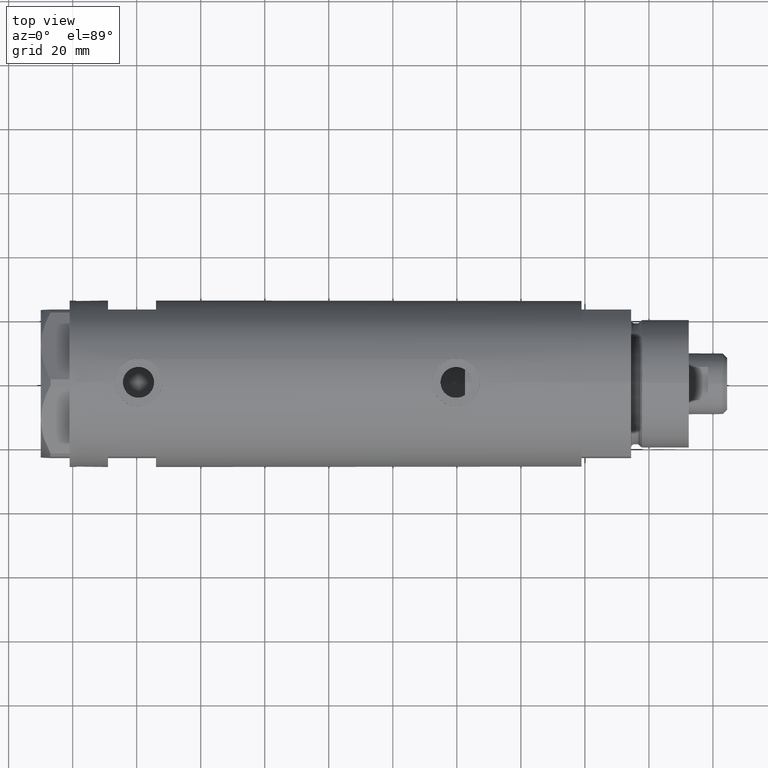
[diagram: clean part render]
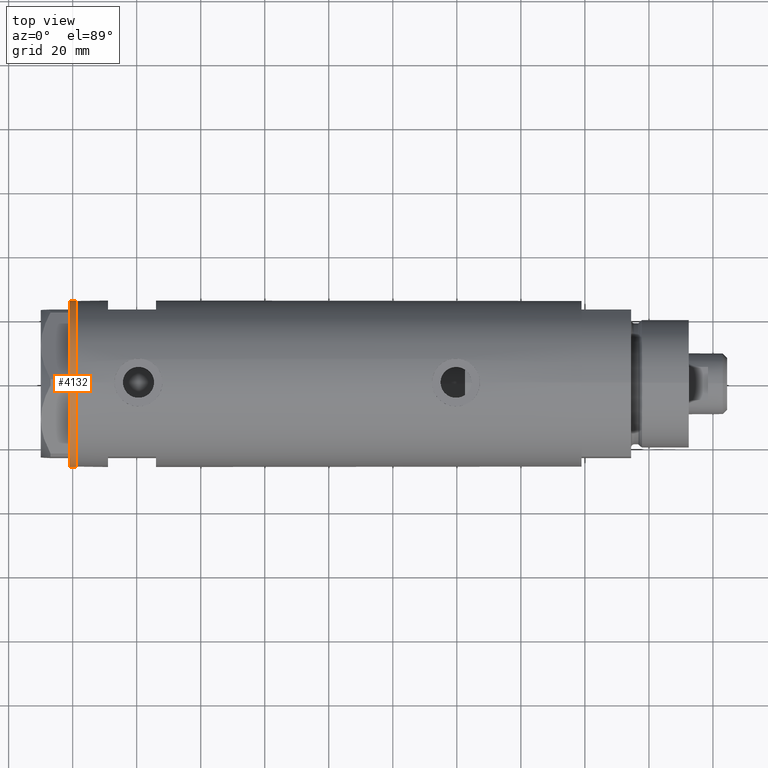
[diagram: same view with one face highlighted and labeled with its STEP entity id]
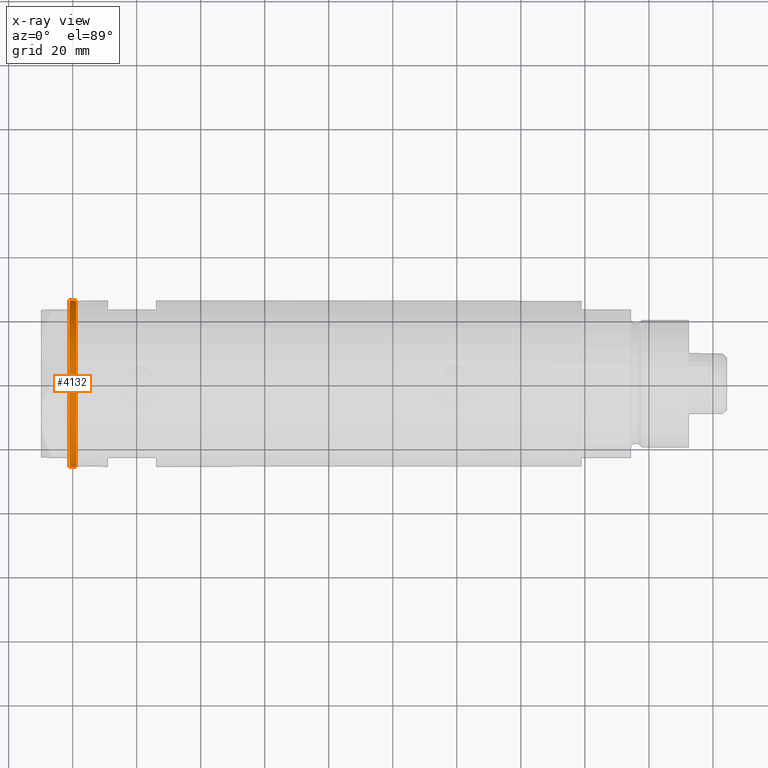
[diagram: x-ray of the same camera — body ghosted, the highlighted face saturated]
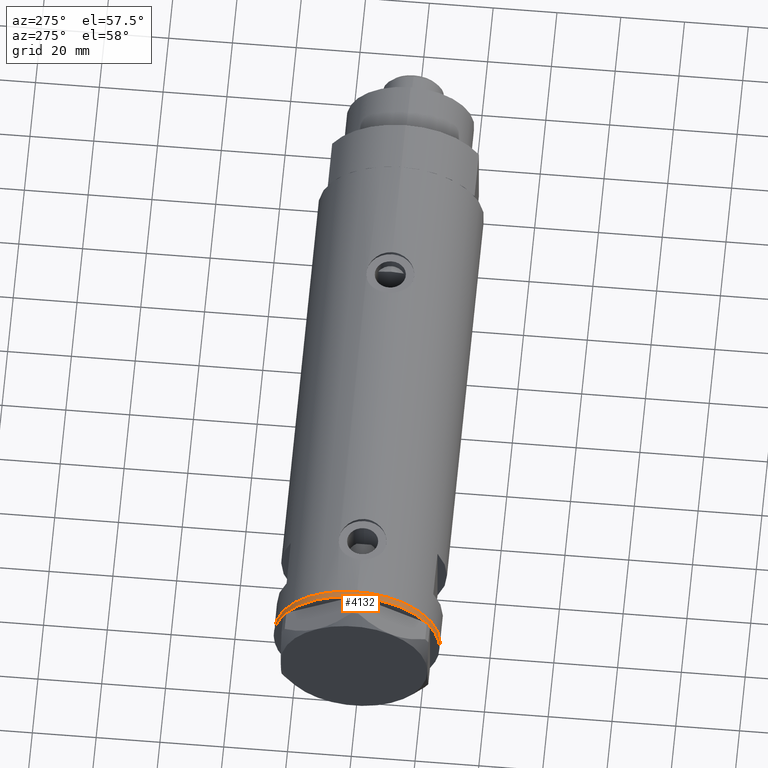
[diagram: same view with one face highlighted and labeled with its STEP entity id]
A machine part, top view. The second image highlights one B-rep face of the part: STEP entity #4132.
The next image is the same camera in x-ray: the body ghosted, the highlighted face saturated — about 0% of this face is hidden behind the body in this view.
A second angle (auxiliary view) of the same face is appended — the face is thin or edge-on in the first view.
In plain terms, the highlighted cylindrical surface (partial cylindrical patch) has radius 26 mm, axis along (-1, -0, 0).
Its self-contained STEP definition (entity closure, byte-faithful):
#14 = VERTEX_POINT ( 'NONE', #3010 ) ;
#79 = CARTESIAN_POINT ( 'NONE',  ( 23.00000000000007461, -12.12435565298200224, 0.000000000000000000 ) ) ;
#85 = ORIENTED_EDGE ( 'NONE', *, *, #1269, .T. ) ;
#119 = DIRECTION ( 'NONE',  ( -1.000000000000000000, 0.000000000000000000, 0.000000000000000000 ) ) ;
#139 = CARTESIAN_POINT ( 'NONE',  ( -0.3132930502238524539, -25.99811238272274139, 0.000000000000000000 ) ) ;
#172 = CARTESIAN_POINT ( 'NONE',  ( 0.000000000000000000, 0.000000000000000000, 0.000000000000000000 ) ) ;
#203 = AXIS2_PLACEMENT_3D ( 'NONE', #879, #1234, #3128 ) ;
#258 = CARTESIAN_POINT ( 'NONE',  ( -26.00000000000000355, 3.184081677783118585E-15, -2.000000000000000000 ) ) ;
#309 = CARTESIAN_POINT ( 'NONE',  ( 0.000000000000000000, 0.000000000000000000, 0.000000000000000000 ) ) ;
#327 = CARTESIAN_POINT ( 'NONE',  ( 0.000000000000000000, 0.000000000000000000, 0.000000000000000000 ) ) ;
#398 = CARTESIAN_POINT ( 'NONE',  ( 22.67167229899274616, -12.72773645103814211, 0.000000000000000000 ) ) ;
#481 = B_SPLINE_CURVE_WITH_KNOTS ( 'NONE', 3,
 ( #3033, #1599, #828, #3094 ),
 .UNSPECIFIED., .F., .F.,
 ( 4, 4 ),
 ( 0.000000000000000000, 1.000000000000000000 ),
 .UNSPECIFIED. ) ;
#503 = CARTESIAN_POINT ( 'NONE',  ( 0.000000000000000000, 0.000000000000000000, -2.000000000000000000 ) ) ;
#508 = CARTESIAN_POINT ( 'NONE',  ( 0.000000000000000000, 0.000000000000000000, 0.000000000000000000 ) ) ;
#526 = AXIS2_PLACEMENT_3D ( 'NONE', #4746, #1678, #1321 ) ;
#614 = CARTESIAN_POINT ( 'NONE',  ( 0.000000000000000000, 0.000000000000000000, 0.000000000000000000 ) ) ;
#620 = EDGE_CURVE ( 'NONE', #1087, #2829, #2512, .T. ) ;
#626 = ORIENTED_EDGE ( 'NONE', *, *, #3273, .T. ) ;
#644 = CARTESIAN_POINT ( 'NONE',  ( 0.000000000000000000, 0.000000000000000000, -2.000000000000000000 ) ) ;
#666 = DIRECTION ( 'NONE',  ( -0.000000000000000000, -0.000000000000000000, 1.000000000000000000 ) ) ;
#682 = VERTEX_POINT ( 'NONE', #1975 ) ;
#739 = EDGE_CURVE ( 'NONE', #1311, #3356, #2461, .T. ) ;
#754 = DIRECTION ( 'NONE',  ( 0.000000000000000000, 0.000000000000000000, -1.000000000000000000 ) ) ;
#828 = CARTESIAN_POINT ( 'NONE',  ( -22.56942594318098116, -12.90986591935703665, 0.000000000000000000 ) ) ;
#842 = AXIS2_PLACEMENT_3D ( 'NONE', #2151, #2519, #2599 ) ;
#879 = CARTESIAN_POINT ( 'NONE',  ( 0.000000000000000000, 0.000000000000000000, 0.000000000000000000 ) ) ;
#909 = CARTESIAN_POINT ( 'NONE',  ( 22.67167229899274616, -12.72773645103814211, 0.000000000000000000 ) ) ;
#930 = AXIS2_PLACEMENT_3D ( 'NONE', #172, #2755, #119 ) ;
#980 = DIRECTION ( 'NONE',  ( -1.000000000000000000, 0.000000000000000000, 0.000000000000000000 ) ) ;
#1010 = DIRECTION ( 'NONE',  ( 0.000000000000000000, 0.000000000000000000, -1.000000000000000000 ) ) ;
#1077 = CIRCLE ( 'NONE', #203, 26.00000000000000355 ) ;
#1079 = AXIS2_PLACEMENT_3D ( 'NONE', #327, #1382, #4763 ) ;
#1086 = AXIS2_PLACEMENT_3D ( 'NONE', #644, #666, #4748 ) ;
#1087 = VERTEX_POINT ( 'NONE', #398 ) ;
#1104 = VERTEX_POINT ( 'NONE', #3417 ) ;
#1122 = ORIENTED_EDGE ( 'NONE', *, *, #3298, .F. ) ;
#1190 = CARTESIAN_POINT ( 'NONE',  ( 0.000000000000000000, 0.000000000000000000, 0.000000000000000000 ) ) ;
#1234 = DIRECTION ( 'NONE',  ( 0.000000000000000000, 0.000000000000000000, -1.000000000000000000 ) ) ;
#1269 = EDGE_CURVE ( 'NONE', #4321, #14, #3138, .T. ) ;
#1272 = CARTESIAN_POINT ( 'NONE',  ( -0.1044411259762646482, -26.00062917530481243, 0.000000000000000000 ) ) ;
#1293 = CYLINDRICAL_SURFACE ( 'NONE', #1086, 26.00000000000000355 ) ;
#1296 = VERTEX_POINT ( 'NONE', #4566 ) ;
#1300 = CARTESIAN_POINT ( 'NONE',  ( -0.3132930502238524539, -25.99811238272274139, 0.000000000000000000 ) ) ;
#1311 = VERTEX_POINT ( 'NONE', #139 ) ;
#1315 = VERTEX_POINT ( 'NONE', #3885 ) ;
#1321 = DIRECTION ( 'NONE',  ( -1.000000000000000000, 0.000000000000000000, 0.000000000000000000 ) ) ;
#1332 = EDGE_CURVE ( 'NONE', #2382, #1311, #2496, .T. ) ;
#1382 = DIRECTION ( 'NONE',  ( 0.000000000000000000, 0.000000000000000000, -1.000000000000000000 ) ) ;
#1415 = ORIENTED_EDGE ( 'NONE', *, *, #2855, .T. ) ;
#1460 = CIRCLE ( 'NONE', #1611, 26.00000000000000355 ) ;
#1497 = VERTEX_POINT ( 'NONE', #2342 ) ;
#1503 = LINE ( 'NONE', #3319, #3874 ) ;
#1578 = VERTEX_POINT ( 'NONE', #79 ) ;
#1599 = CARTESIAN_POINT ( 'NONE',  ( -22.46498481720448481, -13.09076325594801915, 0.000000000000000000 ) ) ;
#1611 = AXIS2_PLACEMENT_3D ( 'NONE', #503, #2292, #2644 ) ;
#1616 = CIRCLE ( 'NONE', #3480, 26.00000000000000355 ) ;
#1678 = DIRECTION ( 'NONE',  ( 0.000000000000000000, 0.000000000000000000, -1.000000000000000000 ) ) ;
#1685 = AXIS2_PLACEMENT_3D ( 'NONE', #508, #1905, #2767 ) ;
#1772 = CIRCLE ( 'NONE', #526, 26.00000000000000355 ) ;
#1778 = DIRECTION ( 'NONE',  ( 0.000000000000000000, 0.000000000000000000, -1.000000000000000000 ) ) ;
#1828 = DIRECTION ( 'NONE',  ( -1.000000000000000000, 0.000000000000000000, 0.000000000000000000 ) ) ;
#1894 = ORIENTED_EDGE ( 'NONE', *, *, #3919, .T. ) ;
#1905 = DIRECTION ( 'NONE',  ( 0.000000000000000000, 0.000000000000000000, -1.000000000000000000 ) ) ;
#1975 = CARTESIAN_POINT ( 'NONE',  ( -22.67167229899264669, -12.72773645103832507, 0.000000000000000000 ) ) ;
#1994 = VERTEX_POINT ( 'NONE', #4759 ) ;
#2041 = CARTESIAN_POINT ( 'NONE',  ( 0.1044411259767168837, -26.00062917530480888, 0.000000000000000000 ) ) ;
#2042 = CARTESIAN_POINT ( 'NONE',  ( 26.00000000000000355, 0.000000000000000000, -2.000000000000000000 ) ) ;
#2090 = AXIS2_PLACEMENT_3D ( 'NONE', #614, #1010, #980 ) ;
#2151 = CARTESIAN_POINT ( 'NONE',  ( 0.000000000000000000, 0.000000000000000000, 0.000000000000000000 ) ) ;
#2292 = DIRECTION ( 'NONE',  ( 0.000000000000000000, 0.000000000000000000, -1.000000000000000000 ) ) ;
#2342 = CARTESIAN_POINT ( 'NONE',  ( -22.35837924876856064, -13.27037593168466501, 0.000000000000000000 ) ) ;
#2382 = VERTEX_POINT ( 'NONE', #4215 ) ;
#2397 = CARTESIAN_POINT ( 'NONE',  ( 22.46498481720470863, -13.09076325594764079, 0.000000000000000000 ) ) ;
#2405 = DIRECTION ( 'NONE',  ( -0.000000000000000000, -0.000000000000000000, 1.000000000000000000 ) ) ;
#2406 = DIRECTION ( 'NONE',  ( -1.000000000000000000, 0.000000000000000000, 0.000000000000000000 ) ) ;
#2461 = CIRCLE ( 'NONE', #3327, 26.00000000000000355 ) ;
#2496 = B_SPLINE_CURVE_WITH_KNOTS ( 'NONE', 3,
 ( #4649, #2041, #1272, #1300 ),
 .UNSPECIFIED., .F., .F.,
 ( 4, 4 ),
 ( 0.000000000000000000, 1.000000000000000000 ),
 .UNSPECIFIED. ) ;
#2502 = EDGE_LOOP ( 'NONE', ( #4046, #1122, #85, #1894, #2901, #4846, #3287, #2824, #3859, #3210, #4130, #3057, #1415, #626, #2615, #2729 ) ) ;
#2512 = B_SPLINE_CURVE_WITH_KNOTS ( 'NONE', 3,
 ( #909, #3773, #2397, #3879 ),
 .UNSPECIFIED., .F., .F.,
 ( 4, 4 ),
 ( 0.000000000000000000, 1.000000000000000000 ),
 .UNSPECIFIED. ) ;
#2519 = DIRECTION ( 'NONE',  ( 0.000000000000000000, 0.000000000000000000, -1.000000000000000000 ) ) ;
#2557 = CIRCLE ( 'NONE', #1685, 26.00000000000000355 ) ;
#2599 = DIRECTION ( 'NONE',  ( -1.000000000000000000, 0.000000000000000000, 0.000000000000000000 ) ) ;
#2615 = ORIENTED_EDGE ( 'NONE', *, *, #2771, .T. ) ;
#2644 = DIRECTION ( 'NONE',  ( -1.000000000000000000, 0.000000000000000000, 0.000000000000000000 ) ) ;
#2729 = ORIENTED_EDGE ( 'NONE', *, *, #3593, .T. ) ;
#2755 = DIRECTION ( 'NONE',  ( 0.000000000000000000, 0.000000000000000000, -1.000000000000000000 ) ) ;
#2767 = DIRECTION ( 'NONE',  ( -1.000000000000000000, 0.000000000000000000, 0.000000000000000000 ) ) ;
#2771 = EDGE_CURVE ( 'NONE', #682, #1315, #2557, .T. ) ;
#2802 = CARTESIAN_POINT ( 'NONE',  ( 26.00000000000000355, 0.000000000000000000, -2.000000000000000000 ) ) ;
#2824 = ORIENTED_EDGE ( 'NONE', *, *, #2921, .T. ) ;
#2829 = VERTEX_POINT ( 'NONE', #3074 ) ;
#2855 = EDGE_CURVE ( 'NONE', #1994, #1497, #4422, .T. ) ;
#2876 = CIRCLE ( 'NONE', #842, 26.00000000000000355 ) ;
#2901 = ORIENTED_EDGE ( 'NONE', *, *, #4347, .T. ) ;
#2921 = EDGE_CURVE ( 'NONE', #1296, #3064, #1772, .T. ) ;
#2938 = DIRECTION ( 'NONE',  ( -0.000000000000000000, -0.000000000000000000, 1.000000000000000000 ) ) ;
#3010 = CARTESIAN_POINT ( 'NONE',  ( 26.00000000000000355, 0.000000000000000000, 0.000000000000000000 ) ) ;
#3033 = CARTESIAN_POINT ( 'NONE',  ( -22.35837924876856064, -13.27037593168466501, 0.000000000000000000 ) ) ;
#3057 = ORIENTED_EDGE ( 'NONE', *, *, #4018, .T. ) ;
#3064 = VERTEX_POINT ( 'NONE', #4420 ) ;
#3074 = CARTESIAN_POINT ( 'NONE',  ( 22.35837924876884131, -13.27037593168418717, 0.000000000000000000 ) ) ;
#3086 = EDGE_CURVE ( 'NONE', #3314, #1104, #1503, .T. ) ;
#3094 = CARTESIAN_POINT ( 'NONE',  ( -22.67167229899264669, -12.72773645103832507, 0.000000000000000000 ) ) ;
#3128 = DIRECTION ( 'NONE',  ( -1.000000000000000000, 0.000000000000000000, 0.000000000000000000 ) ) ;
#3138 = LINE ( 'NONE', #2802, #3380 ) ;
#3148 = CARTESIAN_POINT ( 'NONE',  ( -0.9999999999997406519, -25.98076211353317433, 0.000000000000000000 ) ) ;
#3187 = CIRCLE ( 'NONE', #1079, 26.00000000000000355 ) ;
#3210 = ORIENTED_EDGE ( 'NONE', *, *, #1332, .T. ) ;
#3273 = EDGE_CURVE ( 'NONE', #1497, #682, #481, .T. ) ;
#3280 = EDGE_CURVE ( 'NONE', #2829, #1296, #1077, .T. ) ;
#3287 = ORIENTED_EDGE ( 'NONE', *, *, #3280, .T. ) ;
#3298 = EDGE_CURVE ( 'NONE', #4321, #3314, #1460, .T. ) ;
#3314 = VERTEX_POINT ( 'NONE', #258 ) ;
#3319 = CARTESIAN_POINT ( 'NONE',  ( -26.00000000000000355, 3.184081677783118585E-15, -2.000000000000000000 ) ) ;
#3327 = AXIS2_PLACEMENT_3D ( 'NONE', #309, #1778, #1828 ) ;
#3356 = VERTEX_POINT ( 'NONE', #3148 ) ;
#3380 = VECTOR ( 'NONE', #2405, 1000.000000000000000 ) ;
#3417 = CARTESIAN_POINT ( 'NONE',  ( -26.00000000000000355, 3.184081677783118585E-15, 0.000000000000000000 ) ) ;
#3480 = AXIS2_PLACEMENT_3D ( 'NONE', #1190, #754, #3828 ) ;
#3561 = CIRCLE ( 'NONE', #930, 26.00000000000000355 ) ;
#3567 = CIRCLE ( 'NONE', #4582, 26.00000000000000355 ) ;
#3593 = EDGE_CURVE ( 'NONE', #1315, #1104, #2876, .T. ) ;
#3773 = CARTESIAN_POINT ( 'NONE',  ( 22.56942594318113748, -12.90986591935675065, 0.000000000000000000 ) ) ;
#3792 = EDGE_CURVE ( 'NONE', #3064, #2382, #3561, .T. ) ;
#3828 = DIRECTION ( 'NONE',  ( -1.000000000000000000, 0.000000000000000000, 0.000000000000000000 ) ) ;
#3859 = ORIENTED_EDGE ( 'NONE', *, *, #3792, .T. ) ;
#3874 = VECTOR ( 'NONE', #2938, 1000.000000000000000 ) ;
#3879 = CARTESIAN_POINT ( 'NONE',  ( 22.35837924876884131, -13.27037593168418717, 0.000000000000000000 ) ) ;
#3885 = CARTESIAN_POINT ( 'NONE',  ( -22.99999999999990763, -12.12435565298232021, 0.000000000000000000 ) ) ;
#3919 = EDGE_CURVE ( 'NONE', #14, #1578, #3187, .T. ) ;
#4018 = EDGE_CURVE ( 'NONE', #3356, #1994, #1616, .T. ) ;
#4046 = ORIENTED_EDGE ( 'NONE', *, *, #3086, .F. ) ;
#4130 = ORIENTED_EDGE ( 'NONE', *, *, #739, .T. ) ;
#4132 = ADVANCED_FACE ( 'NONE', ( #4300 ), #1293, .T. ) ;
#4215 = CARTESIAN_POINT ( 'NONE',  ( 0.3132930502243174709, -25.99811238272273428, 0.000000000000000000 ) ) ;
#4252 = DIRECTION ( 'NONE',  ( 0.000000000000000000, 0.000000000000000000, -1.000000000000000000 ) ) ;
#4300 = FACE_OUTER_BOUND ( 'NONE', #2502, .T. ) ;
#4321 = VERTEX_POINT ( 'NONE', #2042 ) ;
#4347 = EDGE_CURVE ( 'NONE', #1578, #1087, #3567, .T. ) ;
#4420 = CARTESIAN_POINT ( 'NONE',  ( 1.000000000000106803, -25.98076211353316367, 0.000000000000000000 ) ) ;
#4422 = CIRCLE ( 'NONE', #2090, 26.00000000000000355 ) ;
#4566 = CARTESIAN_POINT ( 'NONE',  ( 22.00000000000017053, -13.85640646055075464, 0.000000000000000000 ) ) ;
#4582 = AXIS2_PLACEMENT_3D ( 'NONE', #4596, #4252, #2406 ) ;
#4596 = CARTESIAN_POINT ( 'NONE',  ( 0.000000000000000000, 0.000000000000000000, 0.000000000000000000 ) ) ;
#4649 = CARTESIAN_POINT ( 'NONE',  ( 0.3132930502243174709, -25.99811238272273428, 0.000000000000000000 ) ) ;
#4746 = CARTESIAN_POINT ( 'NONE',  ( 0.000000000000000000, 0.000000000000000000, 0.000000000000000000 ) ) ;
#4748 = DIRECTION ( 'NONE',  ( 1.000000000000000000, 0.000000000000000000, 0.000000000000000000 ) ) ;
#4759 = CARTESIAN_POINT ( 'NONE',  ( -21.99999999999998224, -13.85640646055105485, 0.000000000000000000 ) ) ;
#4763 = DIRECTION ( 'NONE',  ( -1.000000000000000000, 0.000000000000000000, 0.000000000000000000 ) ) ;
#4846 = ORIENTED_EDGE ( 'NONE', *, *, #620, .T. ) ;